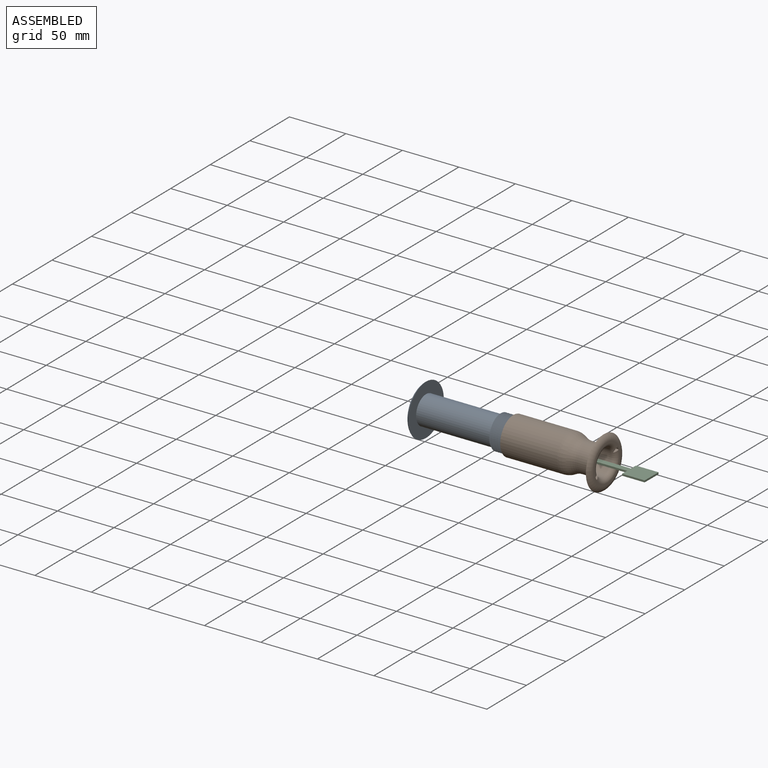
[diagram: assembled view]
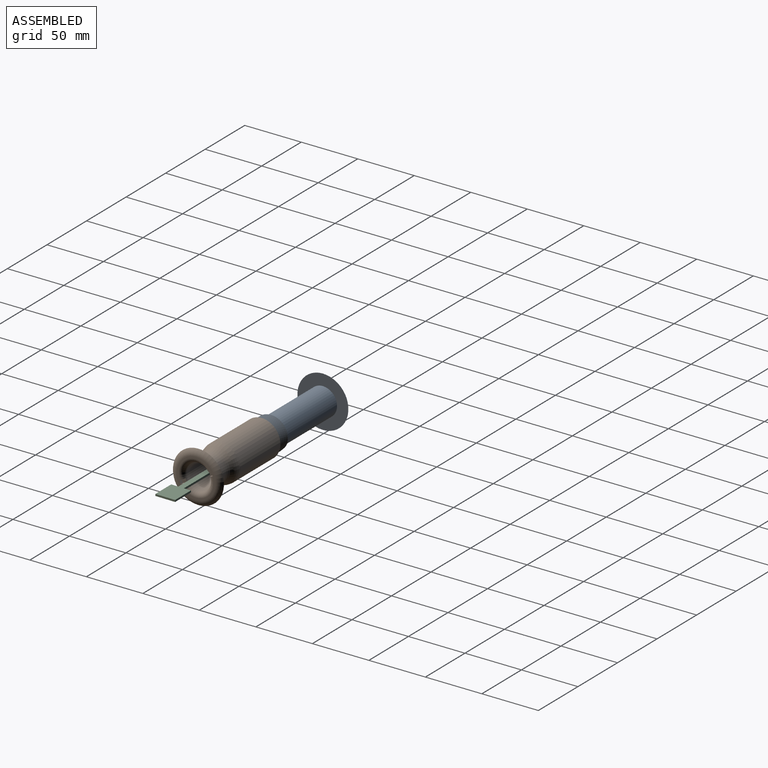
[diagram: assembled view, second angle]
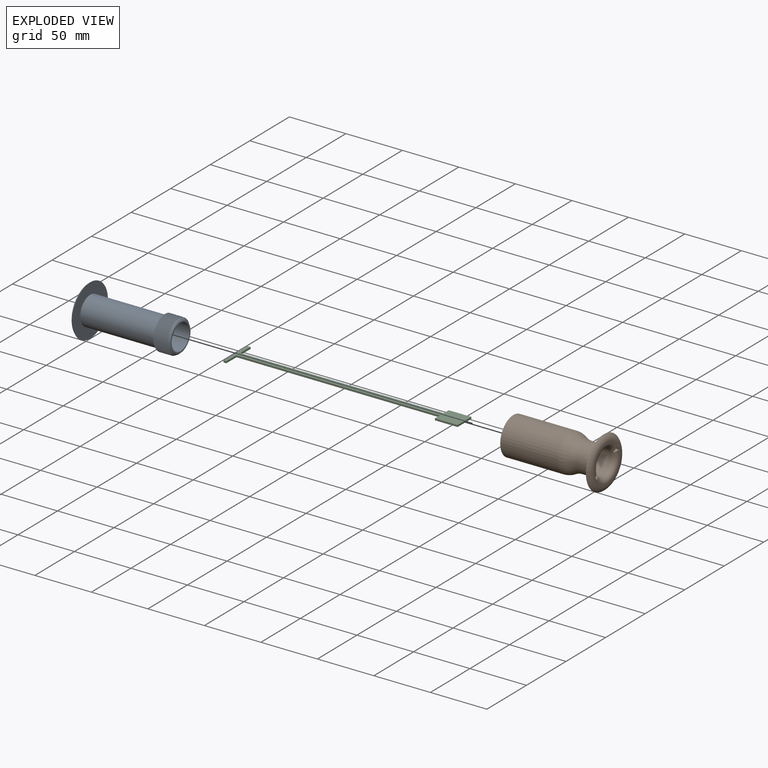
[diagram: exploded view]
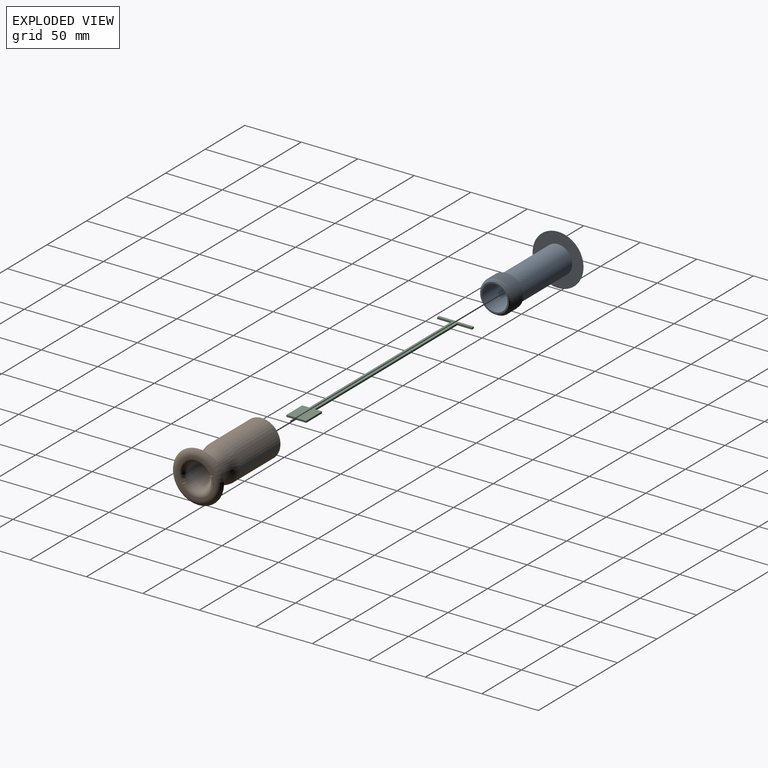
[diagram: exploded view, second angle]
ASSEMBLY  parts=3 mates=4
PART A: 19 faces, bbox 84.5x51.1x51.1 mm
  f0: cylinder r=12.55mm len=65mm, axis (-1,0,0), area 5125.5mm2, adj f5,f15
  f1: plane 34.15x34.15mm, normal (-1,0,0), area 151.5mm2, adj f2,f6,f7,f9,f10,f11,f13,f14
  f2: torus R=15.6mm, axis (-1,0,0), area 520.8mm2, adj f1,f3,f8,f9,f10,f12,f13,f14
  f3: cylinder r=11.25mm len=78.65mm, axis (-1,0,0), area 5559.8mm2, adj f2,f4
  f4: plane 25.1x25.1mm, normal (1,0,0), area 97.2mm2, adj f3,f16
  f5: plane 45.1x45.1mm, normal (1,0,0), area 1102.7mm2, adj f0,f6
  f6: torus R=17.07mm, axis (1,0,0), area 821.3mm2, adj f1,f5
  f7: plane 3x2.5mm, normal (0,-1,0), area 7.5mm2, adj f1,f8,f9,f10
  f8: plane 4.03x3mm, normal (-1,0,0), area 11.9mm2, adj f2,f7,f9,f10
  f9: plane 4.06x2.53mm, normal (0,0,1), area 7.3mm2, adj f1,f2,f7,f8
  f10: plane 4.06x2.53mm, normal (0,0,-1), area 7.3mm2, adj f1,f2,f7,f8
  f11: plane 3x2.5mm, normal (0,1,0), area 7.5mm2, adj f1,f12,f13,f14
  f12: plane 4.03x3mm, normal (-1,0,0), area 11.9mm2, adj f2,f11,f13,f14
  f13: plane 4.06x2.53mm, normal (0,0,1), area 7.3mm2, adj f1,f2,f11,f12
  f14: plane 4.06x2.53mm, normal (0,0,-1), area 7.3mm2, adj f1,f2,f11,f12
  f15: plane 27.31x27.3mm, normal (-1,0,0), area 90.3mm2, adj f0,f17,f18
  f16: cone r=12.55mm half-angle=45deg, axis (-1,0,0), area 127.6mm2, adj f4,f17,f18
  f17: bspline ~33.98x29.43mm, area 1191mm2, adj f15,f16,f18
  f18: bspline ~33.98x29.43mm, area 1191.1mm2, adj f15,f16,f17
PART B: 25 faces, bbox 84.5x51.1x51.1 mm
  f0: cylinder r=11.25mm len=22.5mm, axis (1,0,0), area 1466mm2, adj f3,f19
  f1: cylinder r=12.55mm len=25.1mm, axis (1,0,0), area 1180.8mm2, adj f4,f16
  f2: plane 34.15x34.15mm, normal (1,0,0), area 151.5mm2, adj f3,f5,f6,f8,f9,f10,f12,f13
  f3: torus R=15.6mm, axis (1,0,0), area 520.8mm2, adj f0,f2,f7,f8,f9,f11,f12,f13
  f4: plane 45.1x45.1mm, normal (-1,0,0), area 1102.7mm2, adj f1,f5
  f5: torus R=17.07mm, axis (-1,0,0), area 821.3mm2, adj f2,f4
  f6: plane 3x2.5mm, normal (0,-1,0), area 7.5mm2, adj f2,f7,f8,f9
  f7: plane 4.03x3mm, normal (1,0,0), area 11.9mm2, adj f3,f6,f8,f9
  f8: plane 4.06x2.53mm, normal (0,0,1), area 7.3mm2, adj f2,f3,f6,f7
  f9: plane 4.06x2.53mm, normal (0,0,-1), area 7.3mm2, adj f2,f3,f6,f7
  f10: plane 3x2.5mm, normal (0,1,0), area 7.5mm2, adj f2,f11,f12,f13
  f11: plane 4.03x3mm, normal (1,0,0), area 11.9mm2, adj f3,f10,f12,f13
  f12: plane 4.06x2.53mm, normal (0,0,1), area 7.3mm2, adj f2,f3,f10,f11
  f13: plane 4.06x2.53mm, normal (0,0,-1), area 7.3mm2, adj f2,f3,f10,f11
  f14: cylinder r=16.55mm len=50.29mm, axis (1,0,0), area 5229.9mm2, adj f15,f17
  f15: plane 33.1x33.1mm, normal (-1,0,0), area 81.2mm2, adj f14,f20
  f16: torus R=27.11mm, axis (-1,0,0), area 641.6mm2, adj f1,f17
  f17: torus R=1.99mm, axis (1,0,0), area 770.4mm2, adj f14,f16
  f18: cylinder r=13.25mm len=26.5mm, axis (-1,0,0), area 104.1mm2, adj f19,f21,f22
  f19: torus R=27.91mm, axis (-1,0,0), area 617.8mm2, adj f0,f18
  f20: cone r=13.25mm half-angle=14deg, axis (-1,0,0), area 427.3mm2, adj f15,f23,f24
  f21: plane 2.69x2.5mm, normal (0,0,-1), area 3.5mm2, adj f18,f22,f23,f24
  f22: bspline ~31.37x27.17mm, area 32.6mm2, adj f18,f21,f23
  f23: bspline ~50x36.37mm, area 4148.9mm2, adj f20,f21,f22,f24
  f24: bspline ~50x36.37mm, area 4045.9mm2, adj f20,f21,f23
PART C: 14 faces, bbox 202.5x30.8x1.6 mm
  f0: plane 12.9x1.6mm, normal (1,0,0), area 20.6mm2, adj f1,f2,f4,f7
  f1: plane 2.5x1.6mm, normal (0,-1,0), area 4mm2, adj f0,f2,f4,f5
  f2: plane 202.5x30.79mm, normal (0,0,-1), area 1327mm2, adj f0,f1,f3,f5,f6,f7,f8,f9
  f3: plane 2.5x1.6mm, normal (0,1,0), area 4mm2, adj f2,f4,f5,f6
  f4: plane 202.5x30.79mm, normal (0,0,1), area 1327mm2, adj f0,f1,f3,f5,f6,f7,f8,f9
  f5: plane 30.79x1.6mm, normal (-1,0,0), area 49.3mm2, adj f1,f2,f3,f4
  f6: plane 12.9x1.6mm, normal (1,0,0), area 20.6mm2, adj f2,f3,f4,f8
  f7: plane 180x1.6mm, normal (0,-1,0), area 288mm2, adj f0,f2,f4,f13
  f8: plane 180x1.6mm, normal (0,1,0), area 288mm2, adj f2,f4,f6,f11
  f9: plane 17.5x1.6mm, normal (1,0,0), area 28mm2, adj f2,f4,f10,f12
  f10: plane 20x1.6mm, normal (0,1,0), area 32mm2, adj f2,f4,f9,f11
  f11: plane 6.25x1.6mm, normal (-1,0,0), area 10mm2, adj f2,f4,f8,f10
  f12: plane 20x1.6mm, normal (0,-1,0), area 32mm2, adj f2,f4,f9,f13
  f13: plane 6.25x1.6mm, normal (-1,0,0), area 10mm2, adj f2,f4,f7,f12
PLACE A rot(axis=(1,0,0),179.5deg) t=(1.04,0,0)mm
PLACE B rot(axis=(1,0,0),26.3deg) t=(-21.9,0,0)mm
PLACE C rot(axis=(1,0,0),179.5deg) t=(0.54,0.19,-0.7)mm
MATE planar C.f1 <-> A.f11  axis (0,1,-0.01) through (-0.71,15.59,-0.84)mm
MATE planar C.f0 <-> A.f12  axis (1,0,0) through (0.54,9.14,-0.78)mm
MATE cylindrical A.f2 <-> B.f0  axis (-1,0,0) through (41.72,0,0)mm
MATE planar C.f4 <-> A.f10  axis (0,-0.01,-1) through (0.54,-8.76,-1.42)mm
